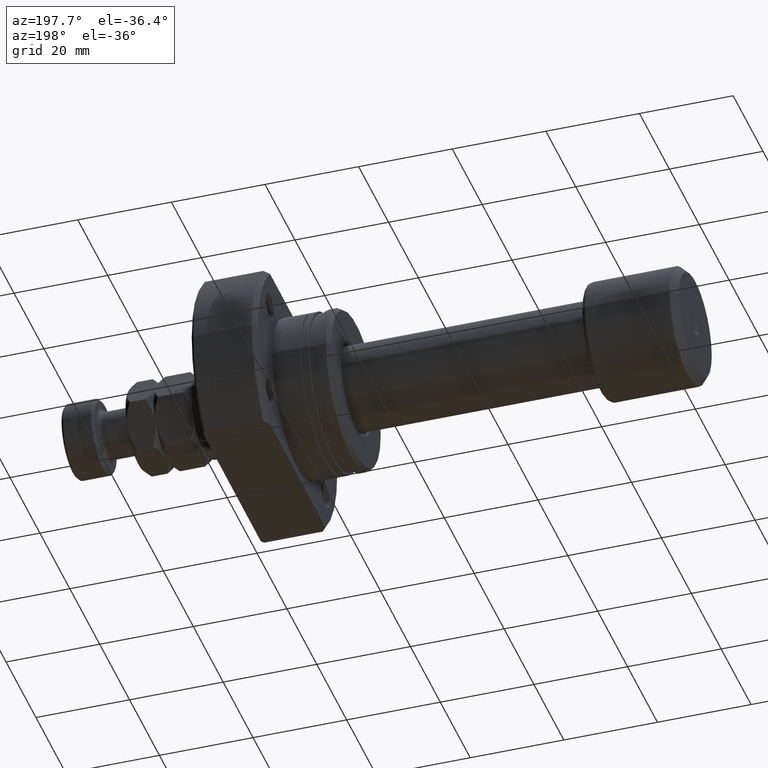
[diagram: clean part render]
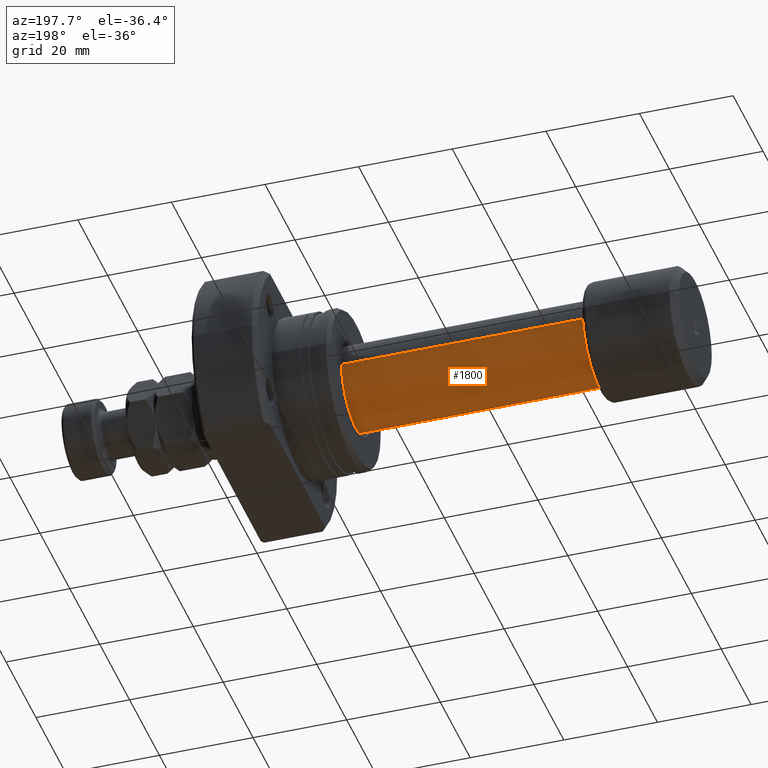
[diagram: same view with one face highlighted and labeled with its STEP entity id]
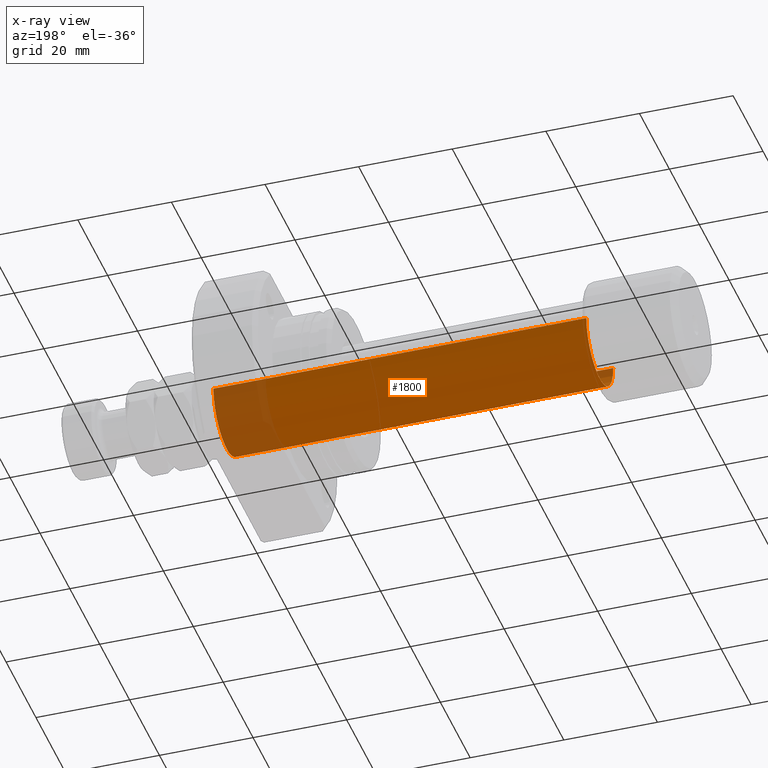
[diagram: x-ray of the same camera — body ghosted, the highlighted face saturated]
A machine part, auxiliary view. The second image highlights one B-rep face of the part: STEP entity #1800.
The next image is the same camera in x-ray: the body ghosted, the highlighted face saturated — about 14% of this face is hidden behind the body in this view.
In plain terms, the highlighted cylindrical surface (partial cylindrical patch) has radius 9 mm, axis along (-1, -0, -0).
Its self-contained STEP definition (entity closure, byte-faithful):
#128 = AXIS2_PLACEMENT_3D ( 'NONE', #3284, #4791, #3233 ) ;
#349 = VECTOR ( 'NONE', #3285, 1000.000000000000000 ) ;
#635 = CIRCLE ( 'NONE', #1737, 9.000000000000000000 ) ;
#1133 = CARTESIAN_POINT ( 'NONE',  ( 9.625880898621695591E-17, -9.000000000000095923, 0.000000000000000000 ) ) ;
#1213 = ORIENTED_EDGE ( 'NONE', *, *, #1585, .T. ) ;
#1279 = VERTEX_POINT ( 'NONE', #4490 ) ;
#1328 = CARTESIAN_POINT ( 'NONE',  ( 0.000000000000000000, 0.000000000000000000, 0.000000000000000000 ) ) ;
#1585 = EDGE_CURVE ( 'NONE', #3094, #2404, #2987, .T. ) ;
#1691 = CARTESIAN_POINT ( 'NONE',  ( 100.0667575123237754, 9.000000000000195399, 1.102182119232641577E-15 ) ) ;
#1709 = CIRCLE ( 'NONE', #128, 9.000000000000193623 ) ;
#1737 = AXIS2_PLACEMENT_3D ( 'NONE', #4788, #1755, #4768 ) ;
#1755 = DIRECTION ( 'NONE',  ( -1.000000000000000000, -1.069542322069065801E-17, -0.000000000000000000 ) ) ;
#1800 = ADVANCED_FACE ( 'NONE', ( #3613 ), #4330, .T. ) ;
#1835 = VERTEX_POINT ( 'NONE', #1691 ) ;
#2035 = ORIENTED_EDGE ( 'NONE', *, *, #3980, .F. ) ;
#2160 = ORIENTED_EDGE ( 'NONE', *, *, #2447, .F. ) ;
#2178 = CARTESIAN_POINT ( 'NONE',  ( 100.0667575123237754, -9.000000000000191847, 0.000000000000000000 ) ) ;
#2205 = DIRECTION ( 'NONE',  ( -1.000000000000000000, -1.069542322069065801E-17, -0.000000000000000000 ) ) ;
#2404 = VERTEX_POINT ( 'NONE', #3134 ) ;
#2447 = EDGE_CURVE ( 'NONE', #1835, #1279, #4034, .T. ) ;
#2668 = ORIENTED_EDGE ( 'NONE', *, *, #3206, .T. ) ;
#2987 = LINE ( 'NONE', #1133, #4829 ) ;
#3094 = VERTEX_POINT ( 'NONE', #2178 ) ;
#3134 = CARTESIAN_POINT ( 'NONE',  ( 20.39999999999999503, -9.000000000000000000, 0.000000000000000000 ) ) ;
#3206 = EDGE_CURVE ( 'NONE', #1835, #3094, #1709, .T. ) ;
#3213 = DIRECTION ( 'NONE',  ( 1.069542322069065955E-17, -1.000000000000000000, 0.000000000000000000 ) ) ;
#3216 = EDGE_LOOP ( 'NONE', ( #2160, #2668, #1213, #2035 ) ) ;
#3233 = DIRECTION ( 'NONE',  ( 0.000000000000000000, -1.000000000000000000, 0.000000000000000000 ) ) ;
#3284 = CARTESIAN_POINT ( 'NONE',  ( 100.0667575123237754, 1.070256321916529121E-15, 0.000000000000000000 ) ) ;
#3285 = DIRECTION ( 'NONE',  ( -1.000000000000000000, -1.069542322069065801E-17, -0.000000000000000000 ) ) ;
#3586 = DIRECTION ( 'NONE',  ( -1.000000000000000000, -1.069542322069065801E-17, -0.000000000000000000 ) ) ;
#3613 = FACE_OUTER_BOUND ( 'NONE', #3216, .T. ) ;
#3980 = EDGE_CURVE ( 'NONE', #1279, #2404, #635, .T. ) ;
#4034 = LINE ( 'NONE', #4842, #349 ) ;
#4282 = AXIS2_PLACEMENT_3D ( 'NONE', #1328, #3586, #3213 ) ;
#4330 = CYLINDRICAL_SURFACE ( 'NONE', #4282, 9.000000000000095923 ) ;
#4490 = CARTESIAN_POINT ( 'NONE',  ( 20.39999999999999503, 9.000000000000000000, 1.102182119232623630E-15 ) ) ;
#4768 = DIRECTION ( 'NONE',  ( 0.000000000000000000, -1.000000000000000000, 0.000000000000000000 ) ) ;
#4788 = CARTESIAN_POINT ( 'NONE',  ( 20.39999999999999503, 2.181866337020893623E-16, 0.000000000000000000 ) ) ;
#4791 = DIRECTION ( 'NONE',  ( -1.000000000000000000, -1.069542322069065801E-17, -0.000000000000000000 ) ) ;
#4829 = VECTOR ( 'NONE', #2205, 1000.000000000000000 ) ;
#4842 = CARTESIAN_POINT ( 'NONE',  ( -9.625880898621695591E-17, 9.000000000000095923, 1.102182119232629744E-15 ) ) ;